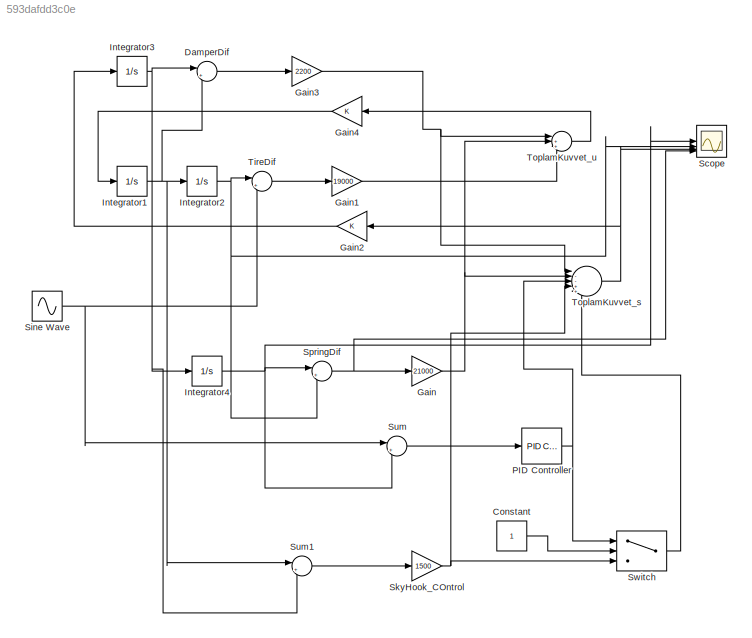
MODEL slx_593dafdd3c0e
KIND model
CONFIG AbsTol = auto
CONFIG EnableMultiTasking = off
CONFIG FixedStep = auto
CONFIG MaxStep = auto
CONFIG MinStep = auto
CONFIG RelTol = 1e-3
CONFIG SampleTimeConstraint = Unconstrained
CONFIG SolverName = VariableStepAuto
CONFIG StartTime = 0.0
CONFIG StopTime = 10.0
BLOCK [Constant] Constant
BLOCK [Sum] DamperDif
  Inputs = |+-
BLOCK [Gain] Gain
  Gain = 21000
BLOCK [Gain] Gain1
  Gain = 19000
BLOCK [Gain] Gain2
BLOCK [Gain] Gain3
  Gain = 2200
BLOCK [Gain] Gain4
BLOCK [Integrator] Integrator1
BLOCK [Integrator] Integrator2
BLOCK [Integrator] Integrator3
BLOCK [Integrator] Integrator4
BLOCK [Reference] PID Controller  REF=slpidlib/PID Controller
  LibrarySourceBlock = simulink/Continuous/PID Controller
  SourceBlock = slpidlib/PID Controller
  SourceType = PID 1dof
BLOCK [Scope] Scope
  Floating = off
  NumInputPorts = 4
  ScopeSpecificationString = Simulink.scopes.TimeScopeBlockCfg('CurrentConfiguration', extmgr.ConfigurationSet(extmgr.Configuration('Core','General UI',true),extmgr.Configuration('Core','Source UI',true),extmgr.Configuration('Sources','WiredSimulink',true),extmgr.Configuration('Visuals','Time Domain',true,'SerializedDisplays',{struct('MinYLimReal','-114.3761','MaxYLimReal','147.66577','YLabelReal','','MinYLimMag',' 0.00000','...<+1484ch>
BLOCK [Sin] Sine Wave
  SampleTime = 0
BLOCK [Gain] SkyHook_COntrol
  Gain = 1500
BLOCK [Sum] SpringDif
  Inputs = |+-
BLOCK [Sum] Sum
  Inputs = |+-
BLOCK [Sum] Sum1
  Inputs = |+-
BLOCK [Switch] Switch
  Criteria = u2 > Threshold
  InputSameDT = off
  SaturateOnIntegerOverflow = off
BLOCK [Sum] TireDif
  Inputs = |+-
BLOCK [Sum] ToplamKuvvet_s
  Inputs = |--+++
BLOCK [Sum] ToplamKuvvet_u
  Inputs = |++-
LINE Constant:1 -> Switch:2
LINE DamperDif:1 -> Gain3:1
LINE Gain1:1 -> ToplamKuvvet_u:3
LINE Gain2:1 -> Integrator3:1
NET Gain3:1 -> ToplamKuvvet_s:1, ToplamKuvvet_u:1
LINE Gain4:1 -> Integrator1:1
NET Gain:1 -> ToplamKuvvet_s:2, ToplamKuvvet_u:2
NET Integrator1:1 -> DamperDif:2, Integrator2:1, Sum1:1
NET Integrator2:1 -> Scope:2, SpringDif:2, TireDif:1
NET Integrator3:1 -> DamperDif:1, Integrator4:1, Sum1:2
NET Integrator4:1 -> Scope:1, SpringDif:1, Sum:2
NET PID Controller:1 -> Switch:1, ToplamKuvvet_s:3
NET Sine Wave:1 -> Sum:1, TireDif:2
NET SkyHook_COntrol:1 -> Switch:3, ToplamKuvvet_s:4
NET SpringDif:1 -> Gain:1, Scope:4
LINE Sum1:1 -> SkyHook_COntrol:1
LINE Sum:1 -> PID Controller:1
LINE Switch:1 -> ToplamKuvvet_s:5
LINE TireDif:1 -> Gain1:1
NET ToplamKuvvet_s:1 -> Gain2:1, Scope:3
LINE ToplamKuvvet_u:1 -> Gain4:1
note: NET lines group one-source signal fan-out (src -> all destinations, sorted); 1:1 wires keep LINE
